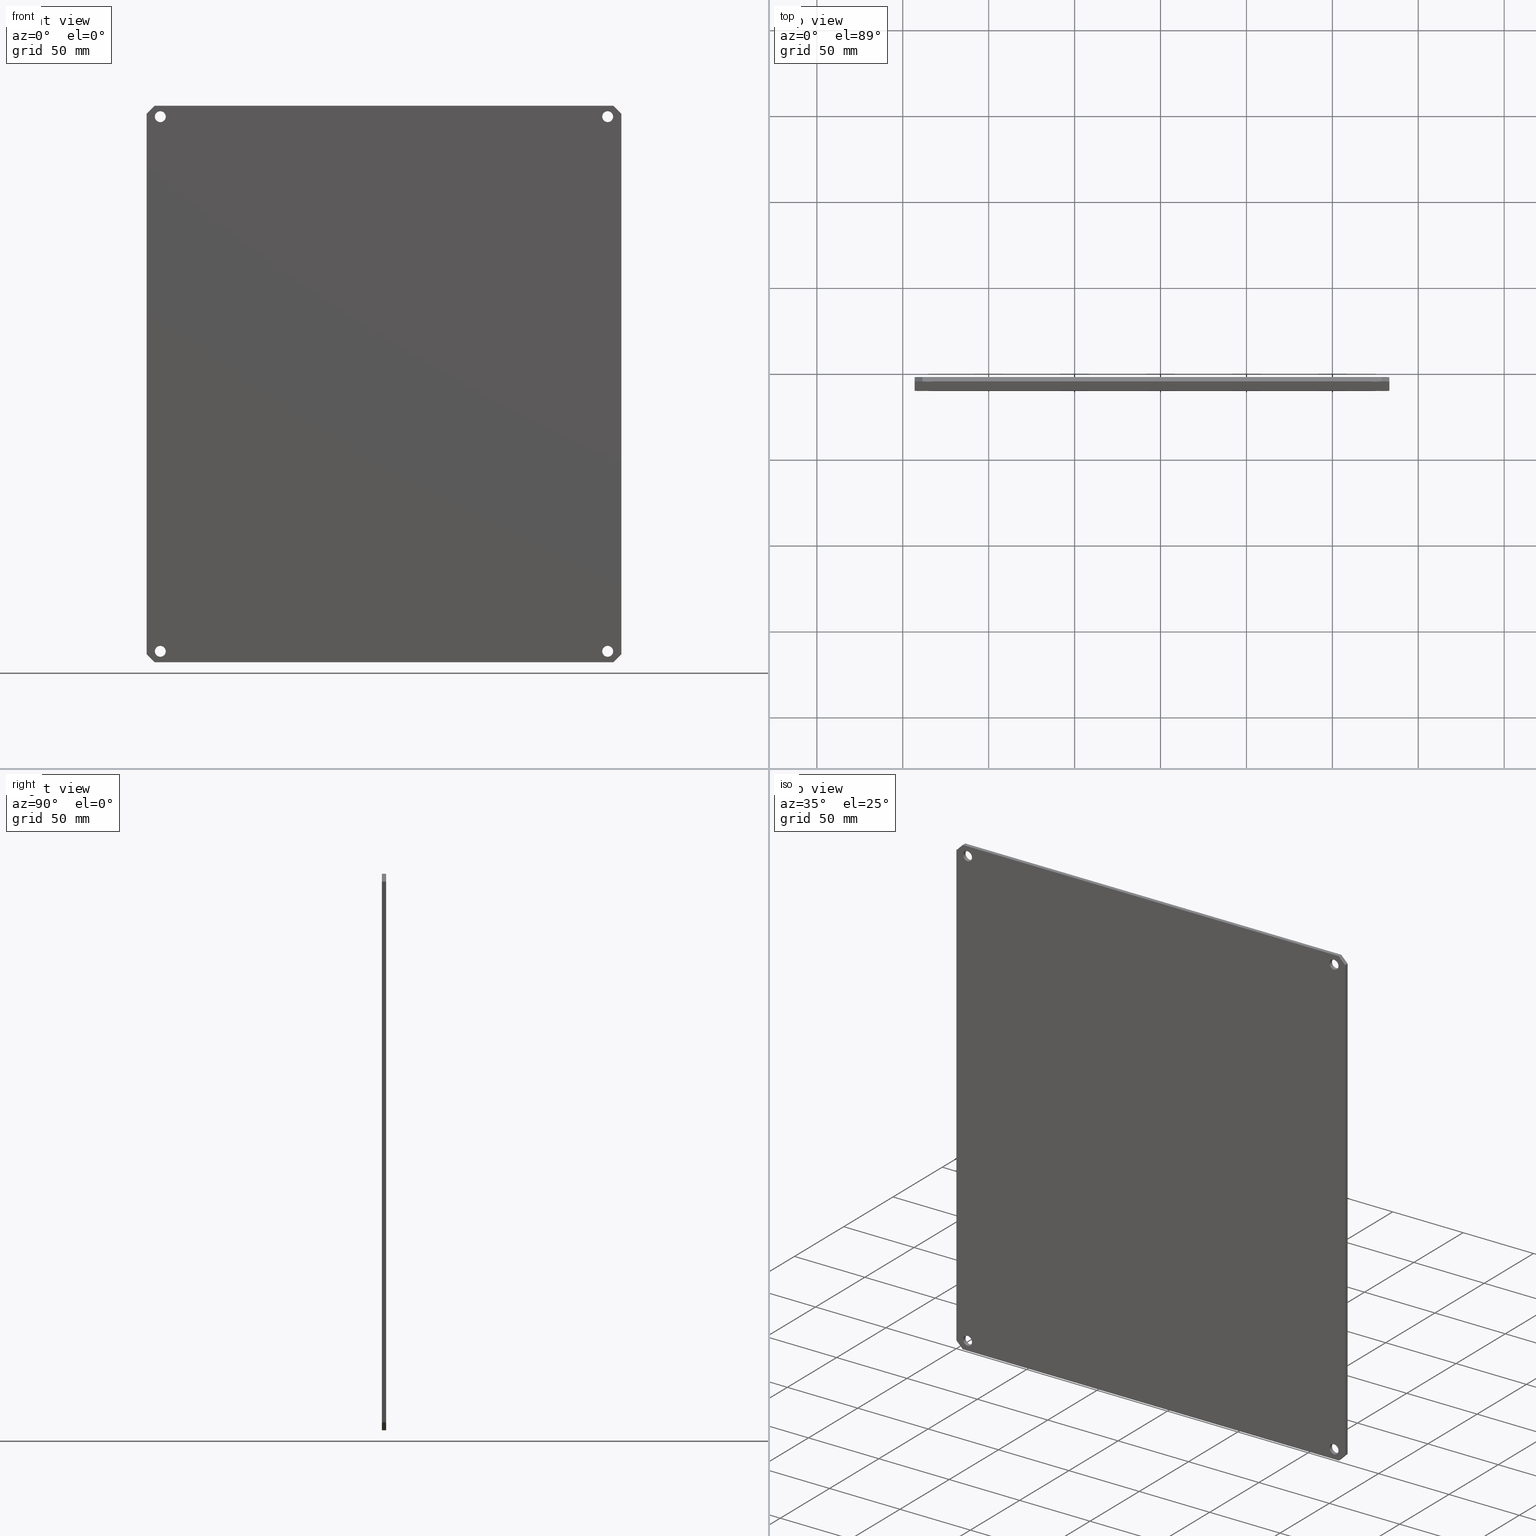
[diagram: canonical four-view strip — front | top / right | iso, engineering-drawing reading convention]
A machine part, canonical four-view strip (front | top / right | iso — engineering-drawing reading convention). The complete STEP part file that produces these views, byte-faithful:
ISO-10303-21;
HEADER;
FILE_DESCRIPTION (( 'STEP AP203' ),
    '1' );
FILE_NAME ('PLA142.step',
    '2014-06-26T14:40:02',
    ( '' ),
    ( '' ),
    'SwSTEP 2.0',
    'SolidWorks 2014',
    '' );
FILE_SCHEMA (( 'CONFIG_CONTROL_DESIGN' ));
ENDSEC;

DATA;
#1 = DIRECTION ( 'NONE',  ( 0.7071067811865432400, 0.0000000000000000000, -0.7071067811865517900 ) ) ;
#2 = CARTESIAN_POINT ( 'NONE',  ( -0.9756477862797061600, -8.261220590614481600, -9.282097330019013300 ) ) ;
#3 = VECTOR ( 'NONE', #424, 39.37007874015748100 ) ;
#4 = DIRECTION ( 'NONE',  ( -0.0000000000000000000, 1.000000000000000000, -0.0000000000000000000 ) ) ;
#5 = ORIENTED_EDGE ( 'NONE', *, *, #72, .T. ) ;
#6 = ORIENTED_EDGE ( 'NONE', *, *, #36, .T. ) ;
#7 = CARTESIAN_POINT ( 'NONE',  ( -0.6631477862797078300, -8.261220590614481600, -9.352097330019013600 ) ) ;
#8 = CARTESIAN_POINT ( 'NONE',  ( -11.35814778627970700, -8.261220590614481600, -9.532097330019011500 ) ) ;
#9 = EDGE_CURVE ( 'NONE', #115, #82, #410, .T. ) ;
#10 = VECTOR ( 'NONE', #126, 39.37007874015748900 ) ;
#11 = ORIENTED_EDGE ( 'NONE', *, *, #466, .F. ) ;
#12 = ORIENTED_EDGE ( 'NONE', *, *, #21, .F. ) ;
#13 = LENGTH_MEASURE_WITH_UNIT ( LENGTH_MEASURE( 0.02539999999999999900 ), #245 );
#14 = VECTOR ( 'NONE', #307, 39.37007874015748100 ) ;
#15 = ADVANCED_FACE ( 'NONE', ( #109, #533, #476, #666, #519 ), #451, .F. ) ;
#16 = ORIENTED_EDGE ( 'NONE', *, *, #444, .F. ) ;
#17 = ORIENTED_EDGE ( 'NONE', *, *, #184, .T. ) ;
#18 = CC_DESIGN_APPROVAL ( #656, ( #618 ) ) ;
#19 = LOCAL_TIME ( 10, 40, 2.000000000000000000, #140 ) ;
#20 = FACE_OUTER_BOUND ( 'NONE', #484, .T. ) ;
#21 = EDGE_CURVE ( 'NONE', #488, #154, #239, .T. ) ;
#22 = ORIENTED_EDGE ( 'NONE', *, *, #179, .T. ) ;
#23 = ORIENTED_EDGE ( 'NONE', *, *, #161, .T. ) ;
#24 = SHAPE_DEFINITION_REPRESENTATION ( #58, #625 ) ;
#25 = AXIS2_PLACEMENT_3D ( 'NONE', #649, #531, #626 ) ;
#26 = LINE ( 'NONE', #84, #561 ) ;
#27 = EDGE_CURVE ( 'NONE', #115, #667, #646, .T. ) ;
#28 = VERTEX_POINT ( 'NONE', #352 ) ;
#29 = ORIENTED_EDGE ( 'NONE', *, *, #155, .T. ) ;
#30 = EDGE_CURVE ( 'NONE', #647, #268, #94, .T. ) ;
#31 = CALENDAR_DATE ( 2014, 26, 6 ) ;
#32 = VECTOR ( 'NONE', #183, 39.37007874015748100 ) ;
#33 = ORIENTED_EDGE ( 'NONE', *, *, #223, .F. ) ;
#34 = DIRECTION ( 'NONE',  ( 0.0000000000000000000, 0.0000000000000000000, 1.000000000000000000 ) ) ;
#35 = VERTEX_POINT ( 'NONE', #233 ) ;
#36 = EDGE_CURVE ( 'NONE', #613, #439, #502, .T. ) ;
#37 = CARTESIAN_POINT ( 'NONE',  ( -0.9756477862797050500, -8.261220590614481600, 2.967902669980988100 ) ) ;
#38 = CARTESIAN_POINT ( 'NONE',  ( -0.9756477862797050500, -8.161220590614481900, 2.967902669980988100 ) ) ;
#39 = FACE_OUTER_BOUND ( 'NONE', #91, .T. ) ;
#40 = CIRCLE ( 'NONE', #555, 0.1249999999999993500 ) ;
#41 = ORIENTED_EDGE ( 'NONE', *, *, #223, .T. ) ;
#42 = DIRECTION ( 'NONE',  ( 0.0000000000000000000, 1.000000000000000000, 0.0000000000000000000 ) ) ;
#43 = ORIENTED_EDGE ( 'NONE', *, *, #27, .F. ) ;
#44 = CARTESIAN_POINT ( 'NONE',  ( -0.6631477862797078300, -8.261220590614481600, -9.532097330019011500 ) ) ;
#45 = CC_DESIGN_PERSON_AND_ORGANIZATION_ASSIGNMENT ( #47, #359, ( #618 ) ) ;
#46 = EDGE_CURVE ( 'NONE', #367, #400, #218, .T. ) ;
#47 = PERSON_AND_ORGANIZATION ( #442, #443 ) ;
#48 = CYLINDRICAL_SURFACE ( 'NONE', #278, 0.1249999999999993500 ) ;
#49 = VERTEX_POINT ( 'NONE', #75 ) ;
#50 = VERTEX_POINT ( 'NONE', #454 ) ;
#51 = EDGE_CURVE ( 'NONE', #572, #314, #363, .T. ) ;
#52 = FACE_OUTER_BOUND ( 'NONE', #638, .T. ) ;
#53 = VECTOR ( 'NONE', #129, 39.37007874015748100 ) ;
#54 = ORIENTED_EDGE ( 'NONE', *, *, #256, .F. ) ;
#55 = ORIENTED_EDGE ( 'NONE', *, *, #244, .T. ) ;
#56 = AXIS2_PLACEMENT_3D ( 'NONE', #344, #269, #281 ) ;
#57 = ADVANCED_FACE ( 'NONE', ( #66 ), #610, .F. ) ;
#58 = PRODUCT_DEFINITION_SHAPE ( 'NONE', 'NONE',  #450 ) ;
#59 = COORDINATED_UNIVERSAL_TIME_OFFSET ( 5, 0, .BEHIND. ) ;
#60 = VECTOR ( 'NONE', #127, 39.37007874015748100 ) ;
#61 = ORIENTED_EDGE ( 'NONE', *, *, #30, .T. ) ;
#62 = ORIENTED_EDGE ( 'NONE', *, *, #9, .F. ) ;
#63 = EDGE_CURVE ( 'NONE', #268, #613, #380, .T. ) ;
#64 = FACE_OUTER_BOUND ( 'NONE', #213, .T. ) ;
#65 = AXIS2_PLACEMENT_3D ( 'NONE', #509, #192, #563 ) ;
#66 = FACE_OUTER_BOUND ( 'NONE', #252, .T. ) ;
#67 = ORIENTED_EDGE ( 'NONE', *, *, #244, .F. ) ;
#68 = ORIENTED_EDGE ( 'NONE', *, *, #668, .F. ) ;
#69 = LOCAL_TIME ( 10, 40, 2.000000000000000000, #209 ) ;
#70 = CC_DESIGN_PERSON_AND_ORGANIZATION_ASSIGNMENT ( #583, #382, ( #618 ) ) ;
#71 = VECTOR ( 'NONE', #490, 39.37007874015748100 ) ;
#72 = EDGE_CURVE ( 'NONE', #82, #168, #487, .T. ) ;
#73 = ORIENTED_EDGE ( 'NONE', *, *, #370, .F. ) ;
#74 = VERTEX_POINT ( 'NONE', #180 ) ;
#75 = CARTESIAN_POINT ( 'NONE',  ( -11.22564778627970700, -8.161220590614481900, -9.157097330019011500 ) ) ;
#76 = CARTESIAN_POINT ( 'NONE',  ( 0.0000000000000000000, 0.0000000000000000000, 0.0000000000000000000 ) ) ;
#77 = EDGE_CURVE ( 'NONE', #667, #168, #185, .T. ) ;
#78 = VECTOR ( 'NONE', #506, 39.37007874015748100 ) ;
#79 = VECTOR ( 'NONE', #246, 39.37007874015748100 ) ;
#80 = DIRECTION ( 'NONE',  ( 0.0000000000000000000, 0.0000000000000000000, 1.000000000000000000 ) ) ;
#81 = ORIENTED_EDGE ( 'NONE', *, *, #214, .T. ) ;
#82 = VERTEX_POINT ( 'NONE', #181 ) ;
#83 = CARTESIAN_POINT ( 'NONE',  ( -11.22564778627971000, -8.261220590614481600, 2.967902669980988100 ) ) ;
#84 = CARTESIAN_POINT ( 'NONE',  ( -11.35814778627970700, -8.261220590614481600, 3.217902669980988100 ) ) ;
#85 = AXIS2_PLACEMENT_3D ( 'NONE', #368, #42, #418 ) ;
#86 = CALENDAR_DATE ( 2014, 26, 6 ) ;
#87 = VECTOR ( 'NONE', #597, 39.37007874015748900 ) ;
#88 = ORIENTED_EDGE ( 'NONE', *, *, #118, .F. ) ;
#89 = EDGE_CURVE ( 'NONE', #74, #154, #474, .T. ) ;
#90 = CARTESIAN_POINT ( 'NONE',  ( -0.9756477862797050500, -8.161220590614481900, 2.842902669980988100 ) ) ;
#91 = EDGE_LOOP ( 'NONE', ( #68, #471, #462, #571 ) ) ;
#92 = CARTESIAN_POINT ( 'NONE',  ( -0.9756477862797061600, -8.261220590614481600, -9.407097330019013300 ) ) ;
#93 = FACE_OUTER_BOUND ( 'NONE', #457, .T. ) ;
#94 = CIRCLE ( 'NONE', #652, 0.1249999999999999000 ) ;
#95 = ORIENTED_EDGE ( 'NONE', *, *, #193, .F. ) ;
#96 = CARTESIAN_POINT ( 'NONE',  ( -11.22564778627970700, -8.161220590614481900, -9.407097330019011500 ) ) ;
#97 = ADVANCED_FACE ( 'NONE', ( #591 ), #504, .F. ) ;
#98 = PLANE ( 'NONE',  #559 ) ;
#99 = PERSON_AND_ORGANIZATION ( #442, #443 ) ;
#100 = DIRECTION ( 'NONE',  ( 0.0000000000000000000, 0.0000000000000000000, 1.000000000000000000 ) ) ;
#101 = VECTOR ( 'NONE', #378, 39.37007874015748900 ) ;
#102 = ADVANCED_FACE ( 'NONE', ( #319 ), #575, .F. ) ;
#103 = EDGE_LOOP ( 'NONE', ( #284, #520 ) ) ;
#104 = EDGE_LOOP ( 'NONE', ( #402, #81 ) ) ;
#105 = SECURITY_CLASSIFICATION ( '', '', #403 ) ;
#106 = EDGE_CURVE ( 'NONE', #463, #28, #340, .T. ) ;
#107 = EDGE_CURVE ( 'NONE', #655, #585, #167, .T. ) ;
#108 = VECTOR ( 'NONE', #465, 39.37007874015748900 ) ;
#109 = FACE_BOUND ( 'NONE', #104, .T. ) ;
#110 = ORIENTED_EDGE ( 'NONE', *, *, #295, .T. ) ;
#111 = ORIENTED_EDGE ( 'NONE', *, *, #46, .F. ) ;
#112 = AXIS2_PLACEMENT_3D ( 'NONE', #607, #589, #640 ) ;
#113 = LINE ( 'NONE', #513, #399 ) ;
#114 = EDGE_LOOP ( 'NONE', ( #88, #324 ) ) ;
#115 = VERTEX_POINT ( 'NONE', #188 ) ;
#116 =( CONVERSION_BASED_UNIT ( 'INCH', #13 ) LENGTH_UNIT ( ) NAMED_UNIT ( #527 ) );
#117 = DIRECTION ( 'NONE',  ( 0.0000000000000000000, 1.000000000000000000, 0.0000000000000000000 ) ) ;
#118 = EDGE_CURVE ( 'NONE', #439, #613, #303, .T. ) ;
#119 = CARTESIAN_POINT ( 'NONE',  ( -11.53814778627970700, -8.261220590614481600, 3.037902669980989200 ) ) ;
#120 = CARTESIAN_POINT ( 'NONE',  ( -11.22564778627971000, -8.161220590614481900, 2.967902669980988100 ) ) ;
#121 = FACE_OUTER_BOUND ( 'NONE', #475, .T. ) ;
#122 = ORIENTED_EDGE ( 'NONE', *, *, #325, .T. ) ;
#123 = DIRECTION ( 'NONE',  ( 0.0000000000000000000, 1.000000000000000000, 0.0000000000000000000 ) ) ;
#124 = ORIENTED_EDGE ( 'NONE', *, *, #9, .T. ) ;
#125 = DIRECTION ( 'NONE',  ( -0.0000000000000000000, 1.000000000000000000, -0.0000000000000000000 ) ) ;
#126 = DIRECTION ( 'NONE',  ( -0.7071067811865474600, -0.0000000000000000000, 0.7071067811865474600 ) ) ;
#127 = DIRECTION ( 'NONE',  ( 0.0000000000000000000, 1.000000000000000000, 0.0000000000000000000 ) ) ;
#128 = AXIS2_PLACEMENT_3D ( 'NONE', #296, #277, #257 ) ;
#129 = DIRECTION ( 'NONE',  ( -0.0000000000000000000, 1.000000000000000000, -0.0000000000000000000 ) ) ;
#130 = DIRECTION ( 'NONE',  ( 0.0000000000000000000, 1.000000000000000000, 0.0000000000000000000 ) ) ;
#131 = DIRECTION ( 'NONE',  ( 0.0000000000000000000, 0.0000000000000000000, 1.000000000000000000 ) ) ;
#132 = CYLINDRICAL_SURFACE ( 'NONE', #137, 0.1250000000000004400 ) ;
#133 = CARTESIAN_POINT ( 'NONE',  ( -11.53814778627970700, -8.261220590614481600, -9.352097330019008200 ) ) ;
#134 = ORIENTED_EDGE ( 'NONE', *, *, #21, .T. ) ;
#135 = VERTEX_POINT ( 'NONE', #133 ) ;
#136 = PLANE ( 'NONE',  #372 ) ;
#137 = AXIS2_PLACEMENT_3D ( 'NONE', #2, #4, #248 ) ;
#138 = CC_DESIGN_PERSON_AND_ORGANIZATION_ASSIGNMENT ( #453, #362, ( #105 ) ) ;
#139 = CARTESIAN_POINT ( 'NONE',  ( -11.22564778627970700, -8.161220590614481900, -9.282097330019011500 ) ) ;
#140 = COORDINATED_UNIVERSAL_TIME_OFFSET ( 5, 0, .BEHIND. ) ;
#141 = LINE ( 'NONE', #557, #10 ) ;
#142 = ORIENTED_EDGE ( 'NONE', *, *, #51, .T. ) ;
#143 = EDGE_CURVE ( 'NONE', #314, #562, #26, .T. ) ;
#144 = ORIENTED_EDGE ( 'NONE', *, *, #201, .T. ) ;
#145 = DIRECTION ( 'NONE',  ( 0.0000000000000000000, 0.0000000000000000000, 1.000000000000000000 ) ) ;
#146 =( NAMED_UNIT ( * ) SI_UNIT ( $, .STERADIAN. ) SOLID_ANGLE_UNIT ( ) );
#147 = CARTESIAN_POINT ( 'NONE',  ( -0.8431477862797096500, -8.161220590614481900, 3.217902669980989000 ) ) ;
#148 = ADVANCED_FACE ( 'NONE', ( #445 ), #132, .F. ) ;
#149 = VECTOR ( 'NONE', #386, 39.37007874015748100 ) ;
#150 = LINE ( 'NONE', #369, #14 ) ;
#151 = CARTESIAN_POINT ( 'NONE',  ( -11.22564778627970700, -8.261220590614481600, -9.282097330019011500 ) ) ;
#152 = ORIENTED_EDGE ( 'NONE', *, *, #106, .F. ) ;
#153 = AXIS2_PLACEMENT_3D ( 'NONE', #431, #249, #267 ) ;
#154 = VERTEX_POINT ( 'NONE', #422 ) ;
#155 = EDGE_CURVE ( 'NONE', #655, #341, #150, .T. ) ;
#156 = ADVANCED_FACE ( 'NONE', ( #280 ), #136, .T. ) ;
#157 = LOCAL_TIME ( 10, 40, 2.000000000000000000, #311 ) ;
#158 = FACE_BOUND ( 'NONE', #114, .T. ) ;
#159 = ORIENTED_EDGE ( 'NONE', *, *, #63, .T. ) ;
#160 = ORIENTED_EDGE ( 'NONE', *, *, #342, .F. ) ;
#161 = EDGE_CURVE ( 'NONE', #377, #488, #432, .T. ) ;
#162 = DIRECTION ( 'NONE',  ( 0.0000000000000000000, 1.000000000000000000, 0.0000000000000000000 ) ) ;
#163 = AXIS2_PLACEMENT_3D ( 'NONE', #299, #634, #523 ) ;
#164 = EDGE_CURVE ( 'NONE', #341, #49, #40, .T. ) ;
#165 = CYLINDRICAL_SURFACE ( 'NONE', #112, 0.1249999999999999000 ) ;
#166 = CARTESIAN_POINT ( 'NONE',  ( -11.35814778627970700, -8.261220590614481600, 3.217902669980988100 ) ) ;
#167 = CIRCLE ( 'NONE', #85, 0.1249999999999993500 ) ;
#168 = VERTEX_POINT ( 'NONE', #90 ) ;
#169 = ORIENTED_EDGE ( 'NONE', *, *, #201, .F. ) ;
#170 = CARTESIAN_POINT ( 'NONE',  ( -11.22564778627971000, -8.261220590614481600, 3.092902669980988100 ) ) ;
#171 = CC_DESIGN_DATE_AND_TIME_ASSIGNMENT ( #568, #467, ( #105 ) ) ;
#172 = DIRECTION ( 'NONE',  ( -0.0000000000000000000, 1.000000000000000000, -0.0000000000000000000 ) ) ;
#173 = APPROVAL_DATE_TIME ( #328, #656 ) ;
#174 = LINE ( 'NONE', #119, #584 ) ;
#175 = ORIENTED_EDGE ( 'NONE', *, *, #493, .F. ) ;
#176 = DIRECTION ( 'NONE',  ( 0.0000000000000000000, 1.000000000000000000, 0.0000000000000000000 ) ) ;
#177 = ORIENTED_EDGE ( 'NONE', *, *, #263, .F. ) ;
#178 = DIRECTION ( 'NONE',  ( 0.0000000000000000000, 0.0000000000000000000, 1.000000000000000000 ) ) ;
#179 = EDGE_CURVE ( 'NONE', #585, #49, #265, .T. ) ;
#180 = CARTESIAN_POINT ( 'NONE',  ( -0.6631477862797056100, -8.161220590614481900, 3.037902669980984800 ) ) ;
#181 = CARTESIAN_POINT ( 'NONE',  ( -0.9756477862797050500, -8.161220590614481900, 3.092902669980988100 ) ) ;
#182 = FACE_OUTER_BOUND ( 'NONE', #343, .T. ) ;
#183 = DIRECTION ( 'NONE',  ( -1.000000000000000000, -0.0000000000000000000, -0.0000000000000000000 ) ) ;
#184 = EDGE_CURVE ( 'NONE', #154, #353, #113, .T. ) ;
#185 = LINE ( 'NONE', #360, #53 ) ;
#186 = CARTESIAN_POINT ( 'NONE',  ( -11.53814778627970700, -8.161220590614481900, -9.532097330019011500 ) ) ;
#187 = EDGE_LOOP ( 'NONE', ( #525, #206, #160, #152 ) ) ;
#188 = CARTESIAN_POINT ( 'NONE',  ( -0.9756477862797050500, -8.261220590614481600, 3.092902669980988100 ) ) ;
#189 = ORIENTED_EDGE ( 'NONE', *, *, #196, .F. ) ;
#190 = DIRECTION ( 'NONE',  ( 0.0000000000000000000, 0.0000000000000000000, 1.000000000000000000 ) ) ;
#191 =( GEOMETRIC_REPRESENTATION_CONTEXT ( 3 ) GLOBAL_UNCERTAINTY_ASSIGNED_CONTEXT ( ( #546 ) ) GLOBAL_UNIT_ASSIGNED_CONTEXT ( ( #116, #526, #146 ) ) REPRESENTATION_CONTEXT ( 'NONE', 'WORKASPACE' ) );
#192 = DIRECTION ( 'NONE',  ( 0.0000000000000000000, 1.000000000000000000, 0.0000000000000000000 ) ) ;
#193 = EDGE_CURVE ( 'NONE', #305, #488, #419, .T. ) ;
#194 = APPROVAL_PERSON_ORGANIZATION ( #348, #656, #350 ) ;
#195 = FACE_OUTER_BOUND ( 'NONE', #624, .T. ) ;
#196 = EDGE_CURVE ( 'NONE', #35, #50, #524, .T. ) ;
#197 = DIRECTION ( 'NONE',  ( 0.0000000000000000000, 0.0000000000000000000, 1.000000000000000000 ) ) ;
#198 = ORIENTED_EDGE ( 'NONE', *, *, #370, .T. ) ;
#199 = EDGE_LOOP ( 'NONE', ( #429, #542 ) ) ;
#200 = MANIFOLD_SOLID_BREP ( '<70-60824PC-1>-<Chamfer1>', #221 ) ;
#201 = EDGE_CURVE ( 'NONE', #35, #400, #251, .T. ) ;
#202 = FACE_OUTER_BOUND ( 'NONE', #577, .T. ) ;
#203 = VECTOR ( 'NONE', #236, 39.37007874015748900 ) ;
#204 = EDGE_CURVE ( 'NONE', #135, #463, #512, .T. ) ;
#205 = ORIENTED_EDGE ( 'NONE', *, *, #63, .F. ) ;
#206 = ORIENTED_EDGE ( 'NONE', *, *, #477, .F. ) ;
#207 = ADVANCED_FACE ( 'NONE', ( #229 ), #491, .F. ) ;
#208 = EDGE_CURVE ( 'NONE', #400, #367, #494, .T. ) ;
#209 = COORDINATED_UNIVERSAL_TIME_OFFSET ( 5, 0, .BEHIND. ) ;
#210 = LINE ( 'NONE', #354, #349 ) ;
#211 = EDGE_LOOP ( 'NONE', ( #61, #435 ) ) ;
#212 = APPROVAL ( #407, 'UNSPECIFIED' ) ;
#213 = EDGE_LOOP ( 'NONE', ( #375, #43, #124, #5 ) ) ;
#214 = EDGE_CURVE ( 'NONE', #667, #115, #374, .T. ) ;
#215 = CARTESIAN_POINT ( 'NONE',  ( -0.8431477862797075500, -8.261220590614481600, 3.217902669980988100 ) ) ;
#216 = DIRECTION ( 'NONE',  ( 0.0000000000000000000, 1.000000000000000000, 0.0000000000000000000 ) ) ;
#217 = LINE ( 'NONE', #545, #78 ) ;
#218 = CIRCLE ( 'NONE', #628, 0.1250000000000004400 ) ;
#219 = DIRECTION ( 'NONE',  ( 0.7071067811865453500, -0.0000000000000000000, -0.7071067811865496800 ) ) ;
#220 = ORIENTED_EDGE ( 'NONE', *, *, #301, .F. ) ;
#221 = CLOSED_SHELL ( 'NONE', ( #57, #576, #384, #148, #326, #580, #156, #635, #15, #323, #434, #264, #102, #479, #97, #207, #522, #389 ) ) ;
#222 = DIRECTION ( 'NONE',  ( -0.7071067811865453500, -0.0000000000000000000, 0.7071067811865496800 ) ) ;
#223 = EDGE_CURVE ( 'NONE', #612, #572, #637, .T. ) ;
#224 = CARTESIAN_POINT ( 'NONE',  ( -0.8431477862797075500, -8.261220590614481600, 3.217902669980988100 ) ) ;
#225 = DIRECTION ( 'NONE',  ( 0.0000000000000000000, -1.000000000000000000, 0.0000000000000000000 ) ) ;
#226 = AXIS2_PLACEMENT_3D ( 'NONE', #642, #145, #596 ) ;
#227 = CARTESIAN_POINT ( 'NONE',  ( -0.8431477862797085400, -8.261220590614481600, -9.532097330019011500 ) ) ;
#228 = LOCAL_TIME ( 10, 40, 2.000000000000000000, #390 ) ;
#229 = FACE_OUTER_BOUND ( 'NONE', #503, .T. ) ;
#230 = ORIENTED_EDGE ( 'NONE', *, *, #107, .T. ) ;
#231 = EDGE_LOOP ( 'NONE', ( #41, #142, #393, #364, #470, #17, #396, #495 ) ) ;
#232 = CARTESIAN_POINT ( 'NONE',  ( -11.53814778627970700, -8.261220590614481600, 3.217902669980988100 ) ) ;
#233 = CARTESIAN_POINT ( 'NONE',  ( -0.9756477862797061600, -8.261220590614481600, -9.407097330019013300 ) ) ;
#234 = DIRECTION ( 'NONE',  ( 8.570503509534944300E-017, 0.0000000000000000000, 1.000000000000000000 ) ) ;
#235 = CARTESIAN_POINT ( 'NONE',  ( -11.53814778627970700, -8.161220590614481900, 3.217902669980988100 ) ) ;
#236 = DIRECTION ( 'NONE',  ( 0.7071067811865516800, -0.0000000000000000000, 0.7071067811865431300 ) ) ;
#237 = EDGE_CURVE ( 'NONE', #50, #35, #654, .T. ) ;
#238 = LINE ( 'NONE', #565, #627 ) ;
#239 = LINE ( 'NONE', #658, #395 ) ;
#240 = CARTESIAN_POINT ( 'NONE',  ( -0.6631477862797078300, -8.161220590614481900, -9.532097330019011500 ) ) ;
#241 = ORIENTED_EDGE ( 'NONE', *, *, #118, .T. ) ;
#242 = AXIS2_PLACEMENT_3D ( 'NONE', #608, #130, #530 ) ;
#243 = DIRECTION ( 'NONE',  ( -1.714100701906988900E-016, -0.0000000000000000000, -1.000000000000000000 ) ) ;
#244 = EDGE_CURVE ( 'NONE', #74, #377, #210, .T. ) ;
#245 =( LENGTH_UNIT ( ) NAMED_UNIT ( * ) SI_UNIT ( $, .METRE. ) );
#246 = DIRECTION ( 'NONE',  ( 0.0000000000000000000, 1.000000000000000000, 0.0000000000000000000 ) ) ;
#247 = DIRECTION ( 'NONE',  ( 0.0000000000000000000, -0.0000000000000000000, 1.000000000000000000 ) ) ;
#248 = DIRECTION ( 'NONE',  ( 0.0000000000000000000, 0.0000000000000000000, 1.000000000000000000 ) ) ;
#249 = DIRECTION ( 'NONE',  ( 0.0000000000000000000, 0.0000000000000000000, -1.000000000000000000 ) ) ;
#250 = AXIS2_PLACEMENT_3D ( 'NONE', #497, #176, #548 ) ;
#251 = LINE ( 'NONE', #92, #391 ) ;
#252 = EDGE_LOOP ( 'NONE', ( #433, #293, #122, #62 ) ) ;
#253 = DIRECTION ( 'NONE',  ( -1.714100701906988900E-016, 0.0000000000000000000, -1.000000000000000000 ) ) ;
#254 = EDGE_LOOP ( 'NONE', ( #392, #55, #23, #134 ) ) ;
#255 = CC_DESIGN_APPROVAL ( #212, ( #105 ) ) ;
#256 = EDGE_CURVE ( 'NONE', #268, #647, #482, .T. ) ;
#257 = DIRECTION ( 'NONE',  ( 0.0000000000000000000, 0.0000000000000000000, 1.000000000000000000 ) ) ;
#258 = DIRECTION ( 'NONE',  ( 0.0000000000000000000, 0.0000000000000000000, 1.000000000000000000 ) ) ;
#259 = VECTOR ( 'NONE', #385, 39.37007874015748100 ) ;
#260 = VECTOR ( 'NONE', #172, 39.37007874015748100 ) ;
#261 = ORIENTED_EDGE ( 'NONE', *, *, #106, .T. ) ;
#262 = MECHANICAL_CONTEXT ( 'NONE', #270, 'mechanical' ) ;
#263 = EDGE_CURVE ( 'NONE', #135, #535, #621, .T. ) ;
#264 = ADVANCED_FACE ( 'NONE', ( #195 ), #48, .F. ) ;
#265 = LINE ( 'NONE', #567, #3 ) ;
#266 = EDGE_LOOP ( 'NONE', ( #189, #144, #282, #11 ) ) ;
#267 = DIRECTION ( 'NONE',  ( -1.000000000000000000, 0.0000000000000000000, -0.0000000000000000000 ) ) ;
#268 = VERTEX_POINT ( 'NONE', #661 ) ;
#269 = DIRECTION ( 'NONE',  ( -0.7071067811865432400, 0.0000000000000000000, 0.7071067811865517900 ) ) ;
#270 = APPLICATION_CONTEXT ( 'configuration controlled 3d designs of mechanical parts and assemblies' ) ;
#271 = EDGE_CURVE ( 'NONE', #535, #572, #174, .T. ) ;
#272 = APPROVAL_DATE_TIME ( #426, #212 ) ;
#273 = LINE ( 'NONE', #227, #409 ) ;
#274 = CARTESIAN_POINT ( 'NONE',  ( -11.53814778627970700, -8.161220590614481900, -9.532097330019011500 ) ) ;
#275 = EDGE_LOOP ( 'NONE', ( #489, #315, #304, #552 ) ) ;
#276 = ORIENTED_EDGE ( 'NONE', *, *, #237, .F. ) ;
#277 = DIRECTION ( 'NONE',  ( 0.0000000000000000000, 1.000000000000000000, 0.0000000000000000000 ) ) ;
#278 = AXIS2_PLACEMENT_3D ( 'NONE', #472, #308, #601 ) ;
#279 = APPLICATION_CONTEXT ( 'configuration controlled 3d designs of mechanical parts and assemblies' ) ;
#280 = FACE_OUTER_BOUND ( 'NONE', #254, .T. ) ;
#281 = DIRECTION ( 'NONE',  ( 0.7071067811865516800, 0.0000000000000000000, 0.7071067811865431300 ) ) ;
#282 = ORIENTED_EDGE ( 'NONE', *, *, #208, .T. ) ;
#283 = EDGE_CURVE ( 'NONE', #428, #448, #332, .T. ) ;
#284 = ORIENTED_EDGE ( 'NONE', *, *, #72, .F. ) ;
#285 = PERSON_AND_ORGANIZATION_ROLE ( 'design_owner' ) ;
#286 = CARTESIAN_POINT ( 'NONE',  ( -6.190647786279674500, -8.161220590614481900, 8.565402669980986900 ) ) ;
#287 = CC_DESIGN_SECURITY_CLASSIFICATION ( #105, ( #618 ) ) ;
#288 = DIRECTION ( 'NONE',  ( 0.0000000000000000000, 1.000000000000000000, 0.0000000000000000000 ) ) ;
#289 = APPROVAL_PERSON_ORGANIZATION ( #437, #212, #651 ) ;
#290 = FACE_OUTER_BOUND ( 'NONE', #231, .T. ) ;
#291 = DIRECTION ( 'NONE',  ( 1.000000000000000000, 0.0000000000000000000, 0.0000000000000000000 ) ) ;
#292 = ORIENTED_EDGE ( 'NONE', *, *, #529, .F. ) ;
#293 = ORIENTED_EDGE ( 'NONE', *, *, #77, .T. ) ;
#294 = DIRECTION ( 'NONE',  ( 0.0000000000000000000, 1.000000000000000000, 0.0000000000000000000 ) ) ;
#295 = EDGE_CURVE ( 'NONE', #585, #655, #455, .T. ) ;
#296 = CARTESIAN_POINT ( 'NONE',  ( -0.9756477862797061600, -8.261220590614481600, -9.282097330019013300 ) ) ;
#297 = APPROVAL_STATUS ( 'not_yet_approved' ) ;
#298 = APPROVAL_ROLE ( '' ) ;
#299 = CARTESIAN_POINT ( 'NONE',  ( -11.22564778627971000, -8.261220590614481600, 2.967902669980988100 ) ) ;
#300 = DIRECTION ( 'NONE',  ( 0.0000000000000000000, 0.0000000000000000000, 1.000000000000000000 ) ) ;
#301 = EDGE_CURVE ( 'NONE', #353, #28, #469, .T. ) ;
#302 = CARTESIAN_POINT ( 'NONE',  ( -11.35814778627970700, -8.161220590614481900, 3.217902669980988100 ) ) ;
#303 = CIRCLE ( 'NONE', #65, 0.1249999999999999000 ) ;
#304 = ORIENTED_EDGE ( 'NONE', *, *, #51, .F. ) ;
#305 = VERTEX_POINT ( 'NONE', #417 ) ;
#306 = CARTESIAN_POINT ( 'NONE',  ( -11.53814778627970700, -8.261220590614481600, -9.532097330019011500 ) ) ;
#307 = DIRECTION ( 'NONE',  ( -0.0000000000000000000, 1.000000000000000000, -0.0000000000000000000 ) ) ;
#308 = DIRECTION ( 'NONE',  ( -0.0000000000000000000, 1.000000000000000000, -0.0000000000000000000 ) ) ;
#309 = CARTESIAN_POINT ( 'NONE',  ( -0.6631477862797078300, -8.261220590614481600, -9.532097330019011500 ) ) ;
#310 = APPLICATION_PROTOCOL_DEFINITION ( 'international standard', 'config_control_design', 1994, #279 ) ;
#311 = COORDINATED_UNIVERSAL_TIME_OFFSET ( 5, 0, .BEHIND. ) ;
#312 = PERSON_AND_ORGANIZATION_ROLE ( 'creator' ) ;
#313 = FACE_BOUND ( 'NONE', #199, .T. ) ;
#314 = VERTEX_POINT ( 'NONE', #302 ) ;
#315 = ORIENTED_EDGE ( 'NONE', *, *, #143, .F. ) ;
#316 = DIRECTION ( 'NONE',  ( -0.0000000000000000000, 1.000000000000000000, -0.0000000000000000000 ) ) ;
#317 = AXIS2_PLACEMENT_3D ( 'NONE', #430, #414, #190 ) ;
#318 = VECTOR ( 'NONE', #222, 39.37007874015748900 ) ;
#319 = FACE_OUTER_BOUND ( 'NONE', #440, .T. ) ;
#320 = DIRECTION ( 'NONE',  ( -1.000000000000000000, -0.0000000000000000000, -0.0000000000000000000 ) ) ;
#321 = DATE_TIME_ROLE ( 'creation_date' ) ;
#322 = ORIENTED_EDGE ( 'NONE', *, *, #204, .T. ) ;
#323 = ADVANCED_FACE ( 'NONE', ( #570, #158, #313, #438, #290 ), #558, .T. ) ;
#324 = ORIENTED_EDGE ( 'NONE', *, *, #36, .F. ) ;
#325 = EDGE_CURVE ( 'NONE', #168, #82, #551, .T. ) ;
#326 = ADVANCED_FACE ( 'NONE', ( #20 ), #449, .T. ) ;
#327 = CARTESIAN_POINT ( 'NONE',  ( -0.8431477862797118700, -8.261220590614481600, 3.217902669980989000 ) ) ;
#328 = DATE_AND_TIME ( #468, #600 ) ;
#329 = PRODUCT_RELATED_PRODUCT_CATEGORY ( 'detail', '', ( #538 ) ) ;
#330 = DIRECTION ( 'NONE',  ( 0.7071067811865474600, 0.0000000000000000000, -0.7071067811865474600 ) ) ;
#331 = APPROVAL_STATUS ( 'not_yet_approved' ) ;
#332 = LINE ( 'NONE', #215, #60 ) ;
#333 = ORIENTED_EDGE ( 'NONE', *, *, #30, .F. ) ;
#334 = EDGE_LOOP ( 'NONE', ( #111, #586 ) ) ;
#335 = DIRECTION ( 'NONE',  ( 8.570503509534944300E-017, 0.0000000000000000000, 1.000000000000000000 ) ) ;
#336 = AXIS2_PLACEMENT_3D ( 'NONE', #611, #1, #366 ) ;
#337 = AXIS2_PLACEMENT_3D ( 'NONE', #499, #398, #376 ) ;
#338 = VECTOR ( 'NONE', #219, 39.37007874015748900 ) ;
#339 = PLANE ( 'NONE',  #56 ) ;
#340 = LINE ( 'NONE', #560, #79 ) ;
#341 = VERTEX_POINT ( 'NONE', #96 ) ;
#342 = EDGE_CURVE ( 'NONE', #28, #612, #141, .T. ) ;
#343 = EDGE_LOOP ( 'NONE', ( #95, #73, #579, #12 ) ) ;
#344 = CARTESIAN_POINT ( 'NONE',  ( -0.6631477862797078300, -8.261220590614481600, -9.352097330019013600 ) ) ;
#345 = DIRECTION ( 'NONE',  ( 0.0000000000000000000, -1.000000000000000000, 0.0000000000000000000 ) ) ;
#346 = CARTESIAN_POINT ( 'NONE',  ( -11.53814778627970700, -8.261220590614481600, -9.532097330019011500 ) ) ;
#347 = DIRECTION ( 'NONE',  ( -0.0000000000000000000, 1.000000000000000000, -0.0000000000000000000 ) ) ;
#348 = PERSON_AND_ORGANIZATION ( #442, #443 ) ;
#349 = VECTOR ( 'NONE', #345, 39.37007874015748100 ) ;
#350 = APPROVAL_ROLE ( '' ) ;
#351 = ORIENTED_EDGE ( 'NONE', *, *, #107, .F. ) ;
#352 = CARTESIAN_POINT ( 'NONE',  ( -11.35814778627970200, -8.161220590614481900, -9.532097330019013300 ) ) ;
#353 = VERTEX_POINT ( 'NONE', #425 ) ;
#354 = CARTESIAN_POINT ( 'NONE',  ( -0.6631477862797056100, -8.261220590614481600, 3.037902669980984800 ) ) ;
#355 = DIRECTION ( 'NONE',  ( 0.0000000000000000000, 1.000000000000000000, 0.0000000000000000000 ) ) ;
#356 = CARTESIAN_POINT ( 'NONE',  ( -11.53814778627970700, -8.161220590614481900, -9.352097330019008200 ) ) ;
#357 = DIRECTION ( 'NONE',  ( 0.0000000000000000000, 0.0000000000000000000, 1.000000000000000000 ) ) ;
#358 = PLANE ( 'NONE',  #153 ) ;
#359 = PERSON_AND_ORGANIZATION_ROLE ( 'creator' ) ;
#360 = CARTESIAN_POINT ( 'NONE',  ( -0.9756477862797050500, -8.261220590614481600, 2.842902669980988100 ) ) ;
#361 = LINE ( 'NONE', #286, #338 ) ;
#362 = PERSON_AND_ORGANIZATION_ROLE ( 'classification_officer' ) ;
#363 = LINE ( 'NONE', #553, #203 ) ;
#364 = ORIENTED_EDGE ( 'NONE', *, *, #493, .T. ) ;
#365 = AXIS2_PLACEMENT_3D ( 'NONE', #556, #216, #247 ) ;
#366 = DIRECTION ( 'NONE',  ( -0.7071067811865516800, 0.0000000000000000000, -0.7071067811865431300 ) ) ;
#367 = VERTEX_POINT ( 'NONE', #598 ) ;
#368 = CARTESIAN_POINT ( 'NONE',  ( -11.22564778627970700, -8.261220590614481600, -9.282097330019011500 ) ) ;
#369 = CARTESIAN_POINT ( 'NONE',  ( -11.22564778627970700, -8.261220590614481600, -9.407097330019011500 ) ) ;
#370 = EDGE_CURVE ( 'NONE', #353, #305, #273, .T. ) ;
#371 = DESIGN_CONTEXT ( 'detailed design', #279, 'design' ) ;
#372 = AXIS2_PLACEMENT_3D ( 'NONE', #44, #566, #253 ) ;
#373 = PERSON_AND_ORGANIZATION ( #442, #443 ) ;
#374 = CIRCLE ( 'NONE', #337, 0.1249999999999999000 ) ;
#375 = ORIENTED_EDGE ( 'NONE', *, *, #77, .F. ) ;
#376 = DIRECTION ( 'NONE',  ( 0.0000000000000000000, 0.0000000000000000000, 1.000000000000000000 ) ) ;
#377 = VERTEX_POINT ( 'NONE', #486 ) ;
#378 = DIRECTION ( 'NONE',  ( 0.7071067811865516800, -0.0000000000000000000, 0.7071067811865431300 ) ) ;
#379 = CYLINDRICAL_SURFACE ( 'NONE', #633, 0.1250000000000004400 ) ;
#380 = LINE ( 'NONE', #500, #629 ) ;
#381 = ORIENTED_EDGE ( 'NONE', *, *, #416, .F. ) ;
#382 = PERSON_AND_ORGANIZATION_ROLE ( 'design_supplier' ) ;
#383 = EDGE_CURVE ( 'NONE', #562, #535, #532, .T. ) ;
#384 = ADVANCED_FACE ( 'NONE', ( #121 ), #394, .F. ) ;
#385 = DIRECTION ( 'NONE',  ( -0.0000000000000000000, 1.000000000000000000, -0.0000000000000000000 ) ) ;
#386 = DIRECTION ( 'NONE',  ( 1.000000000000000000, 0.0000000000000000000, 0.0000000000000000000 ) ) ;
#387 = AXIS2_PLACEMENT_3D ( 'NONE', #76, #258, #291 ) ;
#388 = DIRECTION ( 'NONE',  ( -0.0000000000000000000, 1.000000000000000000, -0.0000000000000000000 ) ) ;
#389 = ADVANCED_FACE ( 'NONE', ( #664 ), #98, .F. ) ;
#390 = COORDINATED_UNIVERSAL_TIME_OFFSET ( 5, 0, .BEHIND. ) ;
#391 = VECTOR ( 'NONE', #388, 39.37007874015748100 ) ;
#392 = ORIENTED_EDGE ( 'NONE', *, *, #89, .F. ) ;
#393 = ORIENTED_EDGE ( 'NONE', *, *, #668, .T. ) ;
#394 = CYLINDRICAL_SURFACE ( 'NONE', #521, 0.1249999999999993500 ) ;
#395 = VECTOR ( 'NONE', #288, 39.37007874015748100 ) ;
#396 = ORIENTED_EDGE ( 'NONE', *, *, #301, .T. ) ;
#397 = DIRECTION ( 'NONE',  ( 0.0000000000000000000, 0.0000000000000000000, 1.000000000000000000 ) ) ;
#398 = DIRECTION ( 'NONE',  ( 0.0000000000000000000, 1.000000000000000000, 0.0000000000000000000 ) ) ;
#399 = VECTOR ( 'NONE', #623, 39.37007874015748900 ) ;
#400 = VERTEX_POINT ( 'NONE', #650 ) ;
#401 = CARTESIAN_POINT ( 'NONE',  ( -0.8431477862797075500, -8.261220590614481600, 3.217902669980988100 ) ) ;
#402 = ORIENTED_EDGE ( 'NONE', *, *, #27, .T. ) ;
#403 = SECURITY_CLASSIFICATION_LEVEL ( 'unclassified' ) ;
#404 = DIRECTION ( 'NONE',  ( -0.7071067811865496800, 0.0000000000000000000, -0.7071067811865453500 ) ) ;
#405 = AXIS2_PLACEMENT_3D ( 'NONE', #644, #123, #131 ) ;
#406 = CARTESIAN_POINT ( 'NONE',  ( -11.53814778627970700, -8.261220590614481600, 3.037902669980989200 ) ) ;
#407 = APPROVAL_STATUS ( 'not_yet_approved' ) ;
#408 = CARTESIAN_POINT ( 'NONE',  ( -11.35814778627970700, -8.261220590614481600, -9.532097330019011500 ) ) ;
#409 = VECTOR ( 'NONE', #464, 39.37007874015748100 ) ;
#410 = LINE ( 'NONE', #547, #260 ) ;
#411 = DIRECTION ( 'NONE',  ( -0.0000000000000000000, 1.000000000000000000, -0.0000000000000000000 ) ) ;
#412 = ORIENTED_EDGE ( 'NONE', *, *, #164, .T. ) ;
#413 = DIRECTION ( 'NONE',  ( 0.0000000000000000000, 1.000000000000000000, 0.0000000000000000000 ) ) ;
#414 = DIRECTION ( 'NONE',  ( 0.0000000000000000000, 1.000000000000000000, 0.0000000000000000000 ) ) ;
#415 = DIRECTION ( 'NONE',  ( -0.0000000000000000000, 1.000000000000000000, -0.0000000000000000000 ) ) ;
#416 = EDGE_CURVE ( 'NONE', #647, #439, #427, .T. ) ;
#417 = CARTESIAN_POINT ( 'NONE',  ( -0.8431477862797096500, -8.261220590614481600, -9.532097330019013300 ) ) ;
#418 = DIRECTION ( 'NONE',  ( 0.0000000000000000000, 0.0000000000000000000, 1.000000000000000000 ) ) ;
#419 = LINE ( 'NONE', #7, #101 ) ;
#420 = ORIENTED_EDGE ( 'NONE', *, *, #466, .T. ) ;
#421 = CC_DESIGN_PERSON_AND_ORGANIZATION_ASSIGNMENT ( #99, #285, ( #538 ) ) ;
#422 = CARTESIAN_POINT ( 'NONE',  ( -0.6631477862797078300, -8.161220590614481900, -9.352097330019010000 ) ) ;
#423 = ORIENTED_EDGE ( 'NONE', *, *, #283, .F. ) ;
#424 = DIRECTION ( 'NONE',  ( -0.0000000000000000000, 1.000000000000000000, -0.0000000000000000000 ) ) ;
#425 = CARTESIAN_POINT ( 'NONE',  ( -0.8431477862797085400, -8.161220590614481900, -9.532097330019011500 ) ) ;
#426 = DATE_AND_TIME ( #549, #19 ) ;
#427 = LINE ( 'NONE', #536, #259 ) ;
#428 = VERTEX_POINT ( 'NONE', #327 ) ;
#429 = ORIENTED_EDGE ( 'NONE', *, *, #436, .F. ) ;
#430 = CARTESIAN_POINT ( 'NONE',  ( -0.9756477862797050500, -8.161220590614481900, 2.967902669980988100 ) ) ;
#431 = CARTESIAN_POINT ( 'NONE',  ( -11.53814778627970700, -8.261220590614481600, -9.532097330019011500 ) ) ;
#432 = LINE ( 'NONE', #309, #540 ) ;
#433 = ORIENTED_EDGE ( 'NONE', *, *, #214, .F. ) ;
#434 = ADVANCED_FACE ( 'NONE', ( #93 ), #379, .F. ) ;
#435 = ORIENTED_EDGE ( 'NONE', *, *, #256, .T. ) ;
#436 = EDGE_CURVE ( 'NONE', #49, #341, #501, .T. ) ;
#437 = PERSON_AND_ORGANIZATION ( #442, #443 ) ;
#438 = FACE_BOUND ( 'NONE', #334, .T. ) ;
#439 = VERTEX_POINT ( 'NONE', #534 ) ;
#440 = EDGE_LOOP ( 'NONE', ( #205, #333, #543, #241 ) ) ;
#441 = DIRECTION ( 'NONE',  ( -1.000000000000000000, 0.0000000000000000000, 8.570503509534944300E-017 ) ) ;
#442 = PERSON ( 'UNSPECIFIED', 'UNSPECIFIED', 'UNSPECIFIED', ('UNSPECIFIED'), ('UNSPECIFIED'), ('UNSPECIFIED') ) ;
#443 = ORGANIZATION ( 'UNSPECIFIED', 'UNSPECIFIED', '' ) ;
#444 = EDGE_CURVE ( 'NONE', #562, #428, #217, .T. ) ;
#445 = FACE_OUTER_BOUND ( 'NONE', #266, .T. ) ;
#446 = AXIS2_PLACEMENT_3D ( 'NONE', #573, #592, #515 ) ;
#447 = ORIENTED_EDGE ( 'NONE', *, *, #295, .F. ) ;
#448 = VERTEX_POINT ( 'NONE', #147 ) ;
#449 = PLANE ( 'NONE',  #460 ) ;
#450 = PRODUCT_DEFINITION ( 'UNKNOWN', '', #618, #371 ) ;
#451 = PLANE ( 'NONE',  #539 ) ;
#452 = DIRECTION ( 'NONE',  ( 0.7071067811865475700, -0.0000000000000000000, 0.7071067811865475700 ) ) ;
#453 = PERSON_AND_ORGANIZATION ( #442, #443 ) ;
#454 = CARTESIAN_POINT ( 'NONE',  ( -0.9756477862797061600, -8.261220590614481600, -9.157097330019011500 ) ) ;
#455 = CIRCLE ( 'NONE', #242, 0.1249999999999993500 ) ;
#456 = CARTESIAN_POINT ( 'NONE',  ( -11.53814778627970700, -8.161220590614481900, 3.037902669980989200 ) ) ;
#457 = EDGE_LOOP ( 'NONE', ( #169, #276, #420, #505 ) ) ;
#458 = ORIENTED_EDGE ( 'NONE', *, *, #155, .F. ) ;
#459 = LINE ( 'NONE', #401, #318 ) ;
#460 = AXIS2_PLACEMENT_3D ( 'NONE', #346, #441, #234 ) ;
#461 = VECTOR ( 'NONE', #243, 39.37007874015748100 ) ;
#462 = ORIENTED_EDGE ( 'NONE', *, *, #444, .T. ) ;
#463 = VERTEX_POINT ( 'NONE', #665 ) ;
#464 = DIRECTION ( 'NONE',  ( 0.0000000000000000000, -1.000000000000000000, 0.0000000000000000000 ) ) ;
#465 = DIRECTION ( 'NONE',  ( -0.7071067811865516800, -0.0000000000000000000, -0.7071067811865431300 ) ) ;
#466 = EDGE_CURVE ( 'NONE', #50, #367, #645, .T. ) ;
#467 = DATE_TIME_ROLE ( 'classification_date' ) ;
#468 = CALENDAR_DATE ( 2014, 26, 6 ) ;
#469 = LINE ( 'NONE', #186, #32 ) ;
#470 = ORIENTED_EDGE ( 'NONE', *, *, #89, .T. ) ;
#471 = ORIENTED_EDGE ( 'NONE', *, *, #143, .T. ) ;
#472 = CARTESIAN_POINT ( 'NONE',  ( -11.22564778627970700, -8.261220590614481600, -9.282097330019011500 ) ) ;
#473 = CYLINDRICAL_SURFACE ( 'NONE', #25, 0.1249999999999999000 ) ;
#474 = LINE ( 'NONE', #240, #461 ) ;
#475 = EDGE_LOOP ( 'NONE', ( #351, #29, #412, #514 ) ) ;
#476 = FACE_BOUND ( 'NONE', #516, .T. ) ;
#477 = EDGE_CURVE ( 'NONE', #612, #135, #238, .T. ) ;
#478 = DIRECTION ( 'NONE',  ( -0.7071067811865453500, 0.0000000000000000000, 0.7071067811865496800 ) ) ;
#479 = ADVANCED_FACE ( 'NONE', ( #64 ), #473, .F. ) ;
#480 = APPROVAL ( #297, 'UNSPECIFIED' ) ;
#481 = DATE_AND_TIME ( #620, #69 ) ;
#482 = CIRCLE ( 'NONE', #163, 0.1249999999999999000 ) ;
#483 = EDGE_LOOP ( 'NONE', ( #595, #554 ) ) ;
#484 = EDGE_LOOP ( 'NONE', ( #605, #593, #33, #528 ) ) ;
#485 = VECTOR ( 'NONE', #347, 39.37007874015748100 ) ;
#486 = CARTESIAN_POINT ( 'NONE',  ( -0.6631477862797033900, -8.261220590614481600, 3.037902669980978100 ) ) ;
#487 = CIRCLE ( 'NONE', #588, 0.1249999999999999000 ) ;
#488 = VERTEX_POINT ( 'NONE', #587 ) ;
#489 = ORIENTED_EDGE ( 'NONE', *, *, #383, .F. ) ;
#490 = DIRECTION ( 'NONE',  ( 8.570503509534944300E-017, 0.0000000000000000000, 1.000000000000000000 ) ) ;
#491 = PLANE ( 'NONE',  #537 ) ;
#492 = APPROVAL_DATE_TIME ( #636, #480 ) ;
#493 = EDGE_CURVE ( 'NONE', #448, #74, #361, .T. ) ;
#494 = CIRCLE ( 'NONE', #446, 0.1250000000000004400 ) ;
#495 = ORIENTED_EDGE ( 'NONE', *, *, #342, .T. ) ;
#496 = ORIENTED_EDGE ( 'NONE', *, *, #599, .F. ) ;
#497 = CARTESIAN_POINT ( 'NONE',  ( -0.9756477862797050500, -8.261220590614481600, 2.967902669980988100 ) ) ;
#498 = DIRECTION ( 'NONE',  ( 0.0000000000000000000, 1.000000000000000000, 0.0000000000000000000 ) ) ;
#499 = CARTESIAN_POINT ( 'NONE',  ( -0.9756477862797050500, -8.261220590614481600, 2.967902669980988100 ) ) ;
#500 = CARTESIAN_POINT ( 'NONE',  ( -11.22564778627971000, -8.261220590614481600, 2.842902669980988100 ) ) ;
#501 = CIRCLE ( 'NONE', #594, 0.1249999999999993500 ) ;
#502 = CIRCLE ( 'NONE', #615, 0.1249999999999999000 ) ;
#503 = EDGE_LOOP ( 'NONE', ( #496, #67, #175, #423 ) ) ;
#504 = PLANE ( 'NONE',  #336 ) ;
#505 = ORIENTED_EDGE ( 'NONE', *, *, #46, .T. ) ;
#506 = DIRECTION ( 'NONE',  ( 1.000000000000000000, 0.0000000000000000000, 0.0000000000000000000 ) ) ;
#507 = AXIS2_PLACEMENT_3D ( 'NONE', #83, #415, #300 ) ;
#508 = CARTESIAN_POINT ( 'NONE',  ( -11.22564778627971000, -8.161220590614481900, 2.842902669980988100 ) ) ;
#509 = CARTESIAN_POINT ( 'NONE',  ( -11.22564778627971000, -8.161220590614481900, 2.967902669980988100 ) ) ;
#510 = APPROVAL_PERSON_ORGANIZATION ( #653, #480, #298 ) ;
#511 = CC_DESIGN_APPROVAL ( #480, ( #450 ) ) ;
#512 = LINE ( 'NONE', #8, #87 ) ;
#513 = CARTESIAN_POINT ( 'NONE',  ( 0.1843522137202257300, -8.161220590614481900, -8.504597330019086200 ) ) ;
#514 = ORIENTED_EDGE ( 'NONE', *, *, #179, .F. ) ;
#515 = DIRECTION ( 'NONE',  ( 0.0000000000000000000, 0.0000000000000000000, 1.000000000000000000 ) ) ;
#516 = EDGE_LOOP ( 'NONE', ( #110, #230 ) ) ;
#517 = DIRECTION ( 'NONE',  ( 0.0000000000000000000, 1.000000000000000000, 0.0000000000000000000 ) ) ;
#518 = VECTOR ( 'NONE', #320, 39.37007874015748100 ) ;
#519 = FACE_OUTER_BOUND ( 'NONE', #622, .T. ) ;
#520 = ORIENTED_EDGE ( 'NONE', *, *, #325, .F. ) ;
#521 = AXIS2_PLACEMENT_3D ( 'NONE', #151, #316, #397 ) ;
#522 = ADVANCED_FACE ( 'NONE', ( #182 ), #339, .F. ) ;
#523 = DIRECTION ( 'NONE',  ( 0.0000000000000000000, 0.0000000000000000000, 1.000000000000000000 ) ) ;
#524 = CIRCLE ( 'NONE', #405, 0.1250000000000004400 ) ;
#525 = ORIENTED_EDGE ( 'NONE', *, *, #204, .F. ) ;
#526 =( NAMED_UNIT ( * ) PLANE_ANGLE_UNIT ( ) SI_UNIT ( $, .RADIAN. ) );
#527 = DIMENSIONAL_EXPONENTS ( 1.000000000000000000, 0.0000000000000000000, 0.0000000000000000000, 0.0000000000000000000, 0.0000000000000000000, 0.0000000000000000000, 0.0000000000000000000 ) ;
#528 = ORIENTED_EDGE ( 'NONE', *, *, #477, .T. ) ;
#529 = EDGE_CURVE ( 'NONE', #305, #463, #609, .T. ) ;
#530 = DIRECTION ( 'NONE',  ( 0.0000000000000000000, 0.0000000000000000000, 1.000000000000000000 ) ) ;
#531 = DIRECTION ( 'NONE',  ( -0.0000000000000000000, 1.000000000000000000, -0.0000000000000000000 ) ) ;
#532 = LINE ( 'NONE', #550, #108 ) ;
#533 = FACE_BOUND ( 'NONE', #211, .T. ) ;
#534 = CARTESIAN_POINT ( 'NONE',  ( -11.22564778627971000, -8.161220590614481900, 3.092902669980988100 ) ) ;
#535 = VERTEX_POINT ( 'NONE', #406 ) ;
#536 = CARTESIAN_POINT ( 'NONE',  ( -11.22564778627971000, -8.261220590614481600, 3.092902669980988100 ) ) ;
#537 = AXIS2_PLACEMENT_3D ( 'NONE', #224, #404, #478 ) ;
#538 = PRODUCT ( 'PLA142', 'PLA142', '', ( #262 ) ) ;
#539 = AXIS2_PLACEMENT_3D ( 'NONE', #232, #117, #602 ) ;
#540 = VECTOR ( 'NONE', #619, 39.37007874015748100 ) ;
#541 = CARTESIAN_POINT ( 'NONE',  ( -0.9756477862797061600, -8.261220590614481600, -9.282097330019013300 ) ) ;
#542 = ORIENTED_EDGE ( 'NONE', *, *, #164, .F. ) ;
#543 = ORIENTED_EDGE ( 'NONE', *, *, #416, .T. ) ;
#544 = CC_DESIGN_PERSON_AND_ORGANIZATION_ASSIGNMENT ( #373, #312, ( #450 ) ) ;
#545 = CARTESIAN_POINT ( 'NONE',  ( -11.53814778627970700, -8.261220590614481600, 3.217902669980988100 ) ) ;
#546 = UNCERTAINTY_MEASURE_WITH_UNIT (LENGTH_MEASURE( 1.000000000000000100E-005 ), #116, 'distance_accuracy_value', 'NONE');
#547 = CARTESIAN_POINT ( 'NONE',  ( -0.9756477862797050500, -8.261220590614481600, 3.092902669980988100 ) ) ;
#548 = DIRECTION ( 'NONE',  ( 0.0000000000000000000, 0.0000000000000000000, 1.000000000000000000 ) ) ;
#549 = CALENDAR_DATE ( 2014, 26, 6 ) ;
#550 = CARTESIAN_POINT ( 'NONE',  ( -11.53814778627970700, -8.261220590614481600, 3.037902669980989200 ) ) ;
#551 = CIRCLE ( 'NONE', #317, 0.1249999999999999000 ) ;
#552 = ORIENTED_EDGE ( 'NONE', *, *, #271, .F. ) ;
#553 = CARTESIAN_POINT ( 'NONE',  ( -11.44814778627970700, -8.161220590614481900, 3.127902669980987300 ) ) ;
#554 = ORIENTED_EDGE ( 'NONE', *, *, #196, .T. ) ;
#555 = AXIS2_PLACEMENT_3D ( 'NONE', #139, #517, #197 ) ;
#556 = CARTESIAN_POINT ( 'NONE',  ( -11.53814778627970700, -8.161220590614481900, 3.217902669980988100 ) ) ;
#557 = CARTESIAN_POINT ( 'NONE',  ( -17.82314778627970500, -8.161220590614481900, -3.067097330019010300 ) ) ;
#558 = PLANE ( 'NONE',  #365 ) ;
#559 = AXIS2_PLACEMENT_3D ( 'NONE', #408, #452, #330 ) ;
#560 = CARTESIAN_POINT ( 'NONE',  ( -11.35814778627970700, -8.261220590614481600, -9.532097330019011500 ) ) ;
#561 = VECTOR ( 'NONE', #617, 39.37007874015748100 ) ;
#562 = VERTEX_POINT ( 'NONE', #166 ) ;
#563 = DIRECTION ( 'NONE',  ( 0.0000000000000000000, 0.0000000000000000000, 1.000000000000000000 ) ) ;
#564 = ORIENTED_EDGE ( 'NONE', *, *, #529, .T. ) ;
#565 = CARTESIAN_POINT ( 'NONE',  ( -11.53814778627970700, -8.261220590614481600, -9.352097330019008200 ) ) ;
#566 = DIRECTION ( 'NONE',  ( 1.000000000000000000, 0.0000000000000000000, -1.714100701906988900E-016 ) ) ;
#567 = CARTESIAN_POINT ( 'NONE',  ( -11.22564778627970700, -8.261220590614481600, -9.157097330019011500 ) ) ;
#568 = DATE_AND_TIME ( #31, #157 ) ;
#569 = APPLICATION_PROTOCOL_DEFINITION ( 'international standard', 'config_control_design', 1994, #270 ) ;
#570 = FACE_BOUND ( 'NONE', #103, .T. ) ;
#571 = ORIENTED_EDGE ( 'NONE', *, *, #283, .T. ) ;
#572 = VERTEX_POINT ( 'NONE', #456 ) ;
#573 = CARTESIAN_POINT ( 'NONE',  ( -0.9756477862797061600, -8.161220590614481900, -9.282097330019013300 ) ) ;
#574 = CARTESIAN_POINT ( 'NONE',  ( -11.22564778627970700, -8.161220590614481900, -9.282097330019011500 ) ) ;
#575 = CYLINDRICAL_SURFACE ( 'NONE', #507, 0.1249999999999999000 ) ;
#576 = ADVANCED_FACE ( 'NONE', ( #202 ), #165, .F. ) ;
#577 = EDGE_LOOP ( 'NONE', ( #54, #159, #6, #381 ) ) ;
#578 = DIRECTION ( 'NONE',  ( 0.0000000000000000000, 0.0000000000000000000, 1.000000000000000000 ) ) ;
#579 = ORIENTED_EDGE ( 'NONE', *, *, #184, .F. ) ;
#580 = ADVANCED_FACE ( 'NONE', ( #52 ), #358, .T. ) ;
#581 = CC_DESIGN_DATE_AND_TIME_ASSIGNMENT ( #481, #321, ( #450 ) ) ;
#582 = DIRECTION ( 'NONE',  ( 0.0000000000000000000, 1.000000000000000000, 0.0000000000000000000 ) ) ;
#583 = PERSON_AND_ORGANIZATION ( #442, #443 ) ;
#584 = VECTOR ( 'NONE', #162, 39.37007874015748100 ) ;
#585 = VERTEX_POINT ( 'NONE', #630 ) ;
#586 = ORIENTED_EDGE ( 'NONE', *, *, #208, .F. ) ;
#587 = CARTESIAN_POINT ( 'NONE',  ( -0.6631477862797078300, -8.261220590614481600, -9.352097330019013600 ) ) ;
#588 = AXIS2_PLACEMENT_3D ( 'NONE', #38, #413, #80 ) ;
#589 = DIRECTION ( 'NONE',  ( -0.0000000000000000000, 1.000000000000000000, -0.0000000000000000000 ) ) ;
#590 = LINE ( 'NONE', #235, #149 ) ;
#591 = FACE_OUTER_BOUND ( 'NONE', #275, .T. ) ;
#592 = DIRECTION ( 'NONE',  ( 0.0000000000000000000, 1.000000000000000000, 0.0000000000000000000 ) ) ;
#593 = ORIENTED_EDGE ( 'NONE', *, *, #271, .T. ) ;
#594 = AXIS2_PLACEMENT_3D ( 'NONE', #574, #582, #578 ) ;
#595 = ORIENTED_EDGE ( 'NONE', *, *, #237, .T. ) ;
#596 = DIRECTION ( 'NONE',  ( 1.000000000000000000, 0.0000000000000000000, -0.0000000000000000000 ) ) ;
#597 = DIRECTION ( 'NONE',  ( 0.7071067811865474600, -0.0000000000000000000, -0.7071067811865474600 ) ) ;
#598 = CARTESIAN_POINT ( 'NONE',  ( -0.9756477862797061600, -8.161220590614481900, -9.157097330019011500 ) ) ;
#599 = EDGE_CURVE ( 'NONE', #377, #428, #459, .T. ) ;
#600 = LOCAL_TIME ( 10, 40, 2.000000000000000000, #59 ) ;
#601 = DIRECTION ( 'NONE',  ( 0.0000000000000000000, 0.0000000000000000000, 1.000000000000000000 ) ) ;
#602 = DIRECTION ( 'NONE',  ( 0.0000000000000000000, -0.0000000000000000000, 1.000000000000000000 ) ) ;
#603 = VECTOR ( 'NONE', #335, 39.37007874015748100 ) ;
#604 = ORIENTED_EDGE ( 'NONE', *, *, #599, .T. ) ;
#605 = ORIENTED_EDGE ( 'NONE', *, *, #263, .T. ) ;
#606 = CARTESIAN_POINT ( 'NONE',  ( -0.9756477862797061600, -8.161220590614481900, -9.282097330019013300 ) ) ;
#607 = CARTESIAN_POINT ( 'NONE',  ( -11.22564778627971000, -8.261220590614481600, 2.967902669980988100 ) ) ;
#608 = CARTESIAN_POINT ( 'NONE',  ( -11.22564778627970700, -8.261220590614481600, -9.282097330019011500 ) ) ;
#609 = LINE ( 'NONE', #306, #518 ) ;
#610 = CYLINDRICAL_SURFACE ( 'NONE', #639, 0.1249999999999999000 ) ;
#611 = CARTESIAN_POINT ( 'NONE',  ( -11.53814778627970700, -8.261220590614481600, 3.037902669980989200 ) ) ;
#612 = VERTEX_POINT ( 'NONE', #356 ) ;
#613 = VERTEX_POINT ( 'NONE', #508 ) ;
#614 = CARTESIAN_POINT ( 'NONE',  ( -11.22564778627970700, -8.261220590614481600, -9.407097330019011500 ) ) ;
#615 = AXIS2_PLACEMENT_3D ( 'NONE', #120, #498, #178 ) ;
#616 = DIRECTION ( 'NONE',  ( -0.0000000000000000000, 1.000000000000000000, -0.0000000000000000000 ) ) ;
#617 = DIRECTION ( 'NONE',  ( 0.0000000000000000000, -1.000000000000000000, 0.0000000000000000000 ) ) ;
#618 = PRODUCT_DEFINITION_FORMATION_WITH_SPECIFIED_SOURCE ( 'ANY', '', #538, .NOT_KNOWN. ) ;
#619 = DIRECTION ( 'NONE',  ( -1.714100701906988900E-016, -0.0000000000000000000, -1.000000000000000000 ) ) ;
#620 = CALENDAR_DATE ( 2014, 26, 6 ) ;
#621 = LINE ( 'NONE', #643, #603 ) ;
#622 = EDGE_LOOP ( 'NONE', ( #16, #648, #177, #322, #292, #657, #631, #604 ) ) ;
#623 = DIRECTION ( 'NONE',  ( -0.7071067811865516800, -0.0000000000000000000, -0.7071067811865431300 ) ) ;
#624 = EDGE_LOOP ( 'NONE', ( #458, #447, #22, #641 ) ) ;
#625 = ADVANCED_BREP_SHAPE_REPRESENTATION ( 'PLA142', ( #200, #387 ), #191 ) ;
#626 = DIRECTION ( 'NONE',  ( 0.0000000000000000000, 0.0000000000000000000, 1.000000000000000000 ) ) ;
#627 = VECTOR ( 'NONE', #225, 39.37007874015748100 ) ;
#628 = AXIS2_PLACEMENT_3D ( 'NONE', #606, #294, #663 ) ;
#629 = VECTOR ( 'NONE', #125, 39.37007874015748100 ) ;
#630 = CARTESIAN_POINT ( 'NONE',  ( -11.22564778627970700, -8.261220590614481600, -9.157097330019011500 ) ) ;
#631 = ORIENTED_EDGE ( 'NONE', *, *, #161, .F. ) ;
#632 = CARTESIAN_POINT ( 'NONE',  ( -0.9756477862797061600, -8.261220590614481600, -9.157097330019011500 ) ) ;
#633 = AXIS2_PLACEMENT_3D ( 'NONE', #541, #616, #100 ) ;
#634 = DIRECTION ( 'NONE',  ( 0.0000000000000000000, 1.000000000000000000, 0.0000000000000000000 ) ) ;
#635 = ADVANCED_FACE ( 'NONE', ( #39 ), #662, .T. ) ;
#636 = DATE_AND_TIME ( #86, #228 ) ;
#637 = LINE ( 'NONE', #274, #71 ) ;
#638 = EDGE_LOOP ( 'NONE', ( #220, #198, #564, #261 ) ) ;
#639 = AXIS2_PLACEMENT_3D ( 'NONE', #37, #411, #357 ) ;
#640 = DIRECTION ( 'NONE',  ( 0.0000000000000000000, 0.0000000000000000000, 1.000000000000000000 ) ) ;
#641 = ORIENTED_EDGE ( 'NONE', *, *, #436, .T. ) ;
#642 = CARTESIAN_POINT ( 'NONE',  ( -11.53814778627970700, -8.261220590614481600, 3.217902669980988100 ) ) ;
#643 = CARTESIAN_POINT ( 'NONE',  ( -11.53814778627970700, -8.261220590614481600, -9.532097330019011500 ) ) ;
#644 = CARTESIAN_POINT ( 'NONE',  ( -0.9756477862797061600, -8.261220590614481600, -9.282097330019013300 ) ) ;
#645 = LINE ( 'NONE', #632, #485 ) ;
#646 = CIRCLE ( 'NONE', #250, 0.1249999999999999000 ) ;
#647 = VERTEX_POINT ( 'NONE', #170 ) ;
#648 = ORIENTED_EDGE ( 'NONE', *, *, #383, .T. ) ;
#649 = CARTESIAN_POINT ( 'NONE',  ( -0.9756477862797050500, -8.261220590614481600, 2.967902669980988100 ) ) ;
#650 = CARTESIAN_POINT ( 'NONE',  ( -0.9756477862797061600, -8.161220590614481900, -9.407097330019013300 ) ) ;
#651 = APPROVAL_ROLE ( '' ) ;
#652 = AXIS2_PLACEMENT_3D ( 'NONE', #660, #355, #34 ) ;
#653 = PERSON_AND_ORGANIZATION ( #442, #443 ) ;
#654 = CIRCLE ( 'NONE', #128, 0.1250000000000004400 ) ;
#655 = VERTEX_POINT ( 'NONE', #614 ) ;
#656 = APPROVAL ( #331, 'UNSPECIFIED' ) ;
#657 = ORIENTED_EDGE ( 'NONE', *, *, #193, .T. ) ;
#658 = CARTESIAN_POINT ( 'NONE',  ( -0.6631477862797078300, -8.261220590614481600, -9.352097330019013600 ) ) ;
#659 = CARTESIAN_POINT ( 'NONE',  ( -0.9756477862797050500, -8.261220590614481600, 2.842902669980988100 ) ) ;
#660 = CARTESIAN_POINT ( 'NONE',  ( -11.22564778627971000, -8.261220590614481600, 2.967902669980988100 ) ) ;
#661 = CARTESIAN_POINT ( 'NONE',  ( -11.22564778627971000, -8.261220590614481600, 2.842902669980988100 ) ) ;
#662 = PLANE ( 'NONE',  #226 ) ;
#663 = DIRECTION ( 'NONE',  ( 0.0000000000000000000, 0.0000000000000000000, 1.000000000000000000 ) ) ;
#664 = FACE_OUTER_BOUND ( 'NONE', #187, .T. ) ;
#665 = CARTESIAN_POINT ( 'NONE',  ( -11.35814778627970700, -8.261220590614481600, -9.532097330019011500 ) ) ;
#666 = FACE_BOUND ( 'NONE', #483, .T. ) ;
#667 = VERTEX_POINT ( 'NONE', #659 ) ;
#668 = EDGE_CURVE ( 'NONE', #314, #448, #590, .T. ) ;
ENDSEC;
END-ISO-10303-21;
